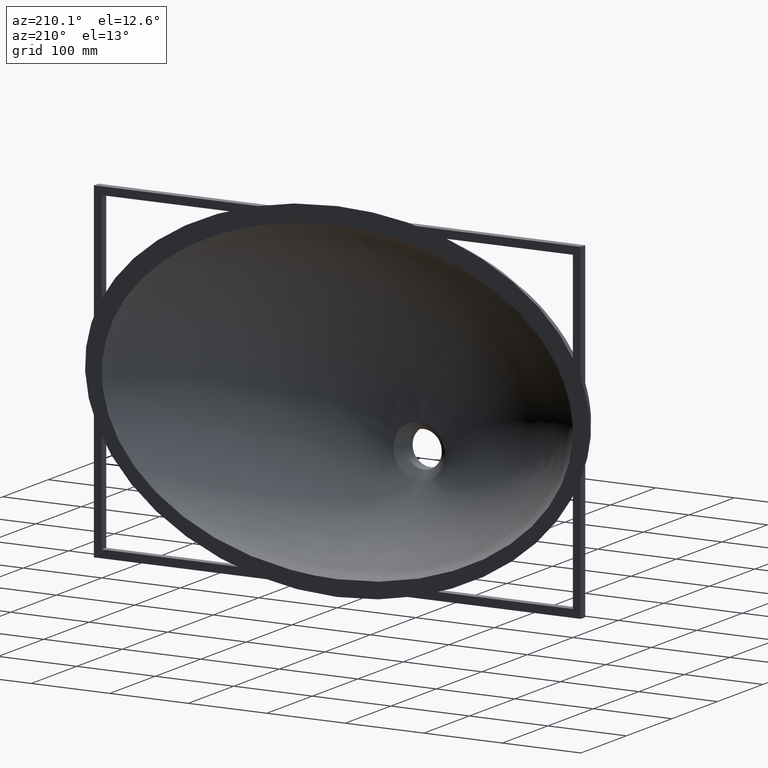
[diagram: clean part render]
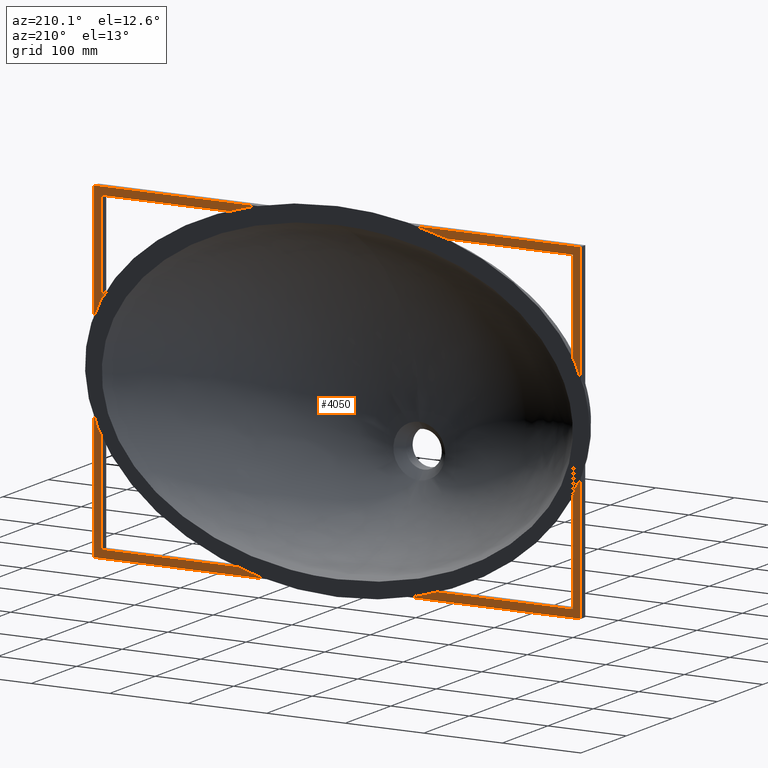
[diagram: same view with one face highlighted and labeled with its STEP entity id]
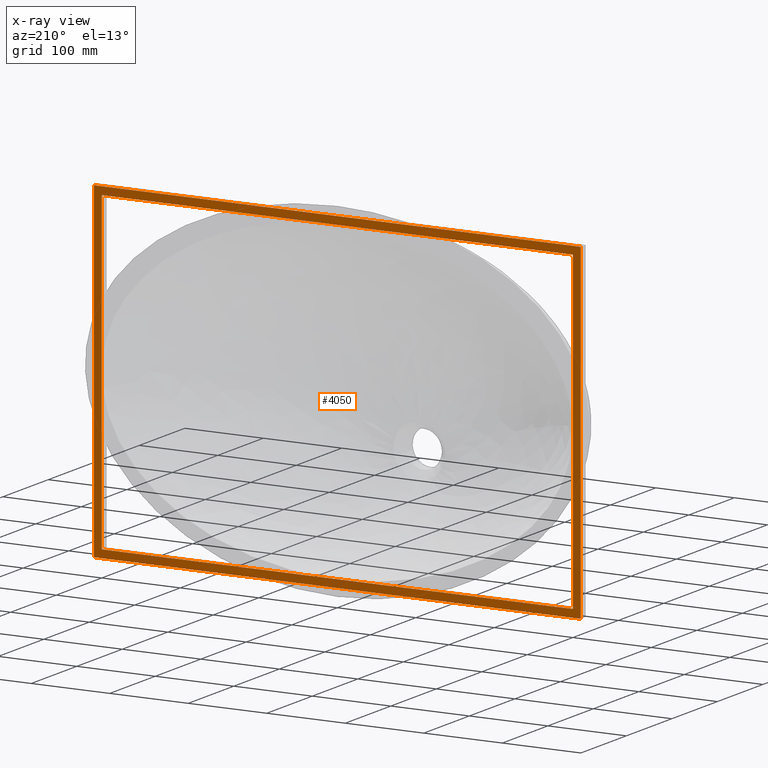
[diagram: x-ray of the same camera — body ghosted, the highlighted face saturated]
A machine part, auxiliary view. The second image highlights one B-rep face of the part: STEP entity #4050.
The next image is the same camera in x-ray: the body ghosted, the highlighted face saturated — about 0% of this face is hidden behind the body in this view.
In plain terms, the highlighted planar face has unit normal (-0, 1, 0).
Its self-contained STEP definition (entity closure, byte-faithful):
#1 = VERTEX_POINT ( 'NONE', #4318 ) ;
#80 = DIRECTION ( 'NONE',  ( 0.0000000000000000000, -0.0000000000000000000, 1.000000000000000000 ) ) ;
#81 = EDGE_CURVE ( 'NONE', #1108, #1068, #1087, .T. ) ;
#153 = LINE ( 'NONE', #252, #2352 ) ;
#203 = CARTESIAN_POINT ( 'NONE',  ( -309.9999999999999400, 0.0000000000000000000, -209.9999999999999700 ) ) ;
#252 = CARTESIAN_POINT ( 'NONE',  ( -299.9999999999999400, 0.0000000000000000000, -199.9999999999999400 ) ) ;
#455 = DIRECTION ( 'NONE',  ( 1.000000000000000000, 0.0000000000000000000, -4.476705744456277300E-017 ) ) ;
#628 = DIRECTION ( 'NONE',  ( 1.321694076934710200E-016, 0.0000000000000000000, 1.000000000000000000 ) ) ;
#636 = CARTESIAN_POINT ( 'NONE',  ( 310.0000000000000600, 0.0000000000000000000, -210.0000000000000000 ) ) ;
#653 = VECTOR ( 'NONE', #3200, 1000.000000000000000 ) ;
#737 = EDGE_CURVE ( 'NONE', #3734, #1966, #754, .T. ) ;
#754 = LINE ( 'NONE', #3729, #2676 ) ;
#775 = CARTESIAN_POINT ( 'NONE',  ( 310.0000000000000600, 0.0000000000000000000, -210.0000000000000000 ) ) ;
#864 = VECTOR ( 'NONE', #628, 1000.000000000000000 ) ;
#923 = CARTESIAN_POINT ( 'NONE',  ( -299.9999999999999400, 0.0000000000000000000, -199.9999999999999400 ) ) ;
#924 = LINE ( 'NONE', #2315, #864 ) ;
#996 = LINE ( 'NONE', #3366, #3087 ) ;
#1036 = PLANE ( 'NONE',  #1568 ) ;
#1059 = VERTEX_POINT ( 'NONE', #203 ) ;
#1068 = VERTEX_POINT ( 'NONE', #1559 ) ;
#1087 = LINE ( 'NONE', #4334, #653 ) ;
#1108 = VERTEX_POINT ( 'NONE', #4408 ) ;
#1433 = CARTESIAN_POINT ( 'NONE',  ( -309.9999999999998900, 0.0000000000000000000, 210.0000000000000900 ) ) ;
#1498 = VERTEX_POINT ( 'NONE', #636 ) ;
#1559 = CARTESIAN_POINT ( 'NONE',  ( 300.0000000000000600, 0.0000000000000000000, -199.9999999999999700 ) ) ;
#1568 = AXIS2_PLACEMENT_3D ( 'NONE', #2441, #1640, #80 ) ;
#1580 = EDGE_CURVE ( 'NONE', #2905, #1, #153, .T. ) ;
#1584 = DIRECTION ( 'NONE',  ( 1.321694076934710200E-016, -0.0000000000000000000, -1.000000000000000000 ) ) ;
#1626 = EDGE_CURVE ( 'NONE', #1059, #3734, #924, .T. ) ;
#1627 = DIRECTION ( 'NONE',  ( 1.000000000000000000, 0.0000000000000000000, 0.0000000000000000000 ) ) ;
#1640 = DIRECTION ( 'NONE',  ( -0.0000000000000000000, 1.000000000000000000, 0.0000000000000000000 ) ) ;
#1685 = LINE ( 'NONE', #775, #3709 ) ;
#1712 = DIRECTION ( 'NONE',  ( 0.0000000000000000000, 0.0000000000000000000, 1.000000000000000000 ) ) ;
#1833 = CARTESIAN_POINT ( 'NONE',  ( -299.9999999999999400, 0.0000000000000000000, -199.9999999999999400 ) ) ;
#1966 = VERTEX_POINT ( 'NONE', #2693 ) ;
#1972 = ORIENTED_EDGE ( 'NONE', *, *, #2740, .T. ) ;
#1979 = CARTESIAN_POINT ( 'NONE',  ( -299.9999999999999400, 0.0000000000000000000, 200.0000000000000300 ) ) ;
#2023 = VECTOR ( 'NONE', #1627, 1000.000000000000000 ) ;
#2315 = CARTESIAN_POINT ( 'NONE',  ( -309.9999999999999400, 0.0000000000000000000, -209.9999999999999700 ) ) ;
#2352 = VECTOR ( 'NONE', #1712, 1000.000000000000000 ) ;
#2441 = CARTESIAN_POINT ( 'NONE',  ( 0.0000000000000000000, 0.0000000000000000000, 0.0000000000000000000 ) ) ;
#2523 = ORIENTED_EDGE ( 'NONE', *, *, #737, .T. ) ;
#2569 = LINE ( 'NONE', #1979, #2023 ) ;
#2636 = FACE_BOUND ( 'NONE', #4250, .T. ) ;
#2676 = VECTOR ( 'NONE', #455, 1000.000000000000000 ) ;
#2693 = CARTESIAN_POINT ( 'NONE',  ( 310.0000000000000000, 0.0000000000000000000, 210.0000000000000600 ) ) ;
#2740 = EDGE_CURVE ( 'NONE', #1498, #1059, #996, .T. ) ;
#2788 = ORIENTED_EDGE ( 'NONE', *, *, #1580, .F. ) ;
#2797 = ORIENTED_EDGE ( 'NONE', *, *, #1626, .T. ) ;
#2808 = EDGE_CURVE ( 'NONE', #1068, #2905, #3822, .T. ) ;
#2905 = VERTEX_POINT ( 'NONE', #1833 ) ;
#2918 = EDGE_CURVE ( 'NONE', #1966, #1498, #1685, .T. ) ;
#2955 = EDGE_LOOP ( 'NONE', ( #2797, #2523, #4340, #1972 ) ) ;
#2995 = DIRECTION ( 'NONE',  ( -1.000000000000000000, -0.0000000000000000000, 4.476705744456276700E-017 ) ) ;
#3087 = VECTOR ( 'NONE', #2995, 1000.000000000000000 ) ;
#3189 = ORIENTED_EDGE ( 'NONE', *, *, #3756, .F. ) ;
#3200 = DIRECTION ( 'NONE',  ( -0.0000000000000000000, -0.0000000000000000000, -1.000000000000000000 ) ) ;
#3366 = CARTESIAN_POINT ( 'NONE',  ( -309.9999999999999400, 0.0000000000000000000, -209.9999999999999700 ) ) ;
#3488 = ORIENTED_EDGE ( 'NONE', *, *, #2808, .F. ) ;
#3543 = FACE_OUTER_BOUND ( 'NONE', #2955, .T. ) ;
#3709 = VECTOR ( 'NONE', #1584, 1000.000000000000000 ) ;
#3729 = CARTESIAN_POINT ( 'NONE',  ( -309.9999999999998900, 0.0000000000000000000, 210.0000000000000900 ) ) ;
#3734 = VERTEX_POINT ( 'NONE', #1433 ) ;
#3756 = EDGE_CURVE ( 'NONE', #1, #1108, #2569, .T. ) ;
#3822 = LINE ( 'NONE', #923, #4163 ) ;
#4050 = ADVANCED_FACE ( 'NONE', ( #2636, #3543 ), #1036, .T. ) ;
#4163 = VECTOR ( 'NONE', #4369, 1000.000000000000000 ) ;
#4250 = EDGE_LOOP ( 'NONE', ( #2788, #3488, #4405, #3189 ) ) ;
#4318 = CARTESIAN_POINT ( 'NONE',  ( -299.9999999999999400, 0.0000000000000000000, 200.0000000000000300 ) ) ;
#4334 = CARTESIAN_POINT ( 'NONE',  ( 300.0000000000000600, 0.0000000000000000000, -199.9999999999999700 ) ) ;
#4340 = ORIENTED_EDGE ( 'NONE', *, *, #2918, .T. ) ;
#4369 = DIRECTION ( 'NONE',  ( -1.000000000000000000, -0.0000000000000000000, 4.625929269271485800E-017 ) ) ;
#4405 = ORIENTED_EDGE ( 'NONE', *, *, #81, .F. ) ;
#4408 = CARTESIAN_POINT ( 'NONE',  ( 300.0000000000000600, 0.0000000000000000000, 200.0000000000000300 ) ) ;